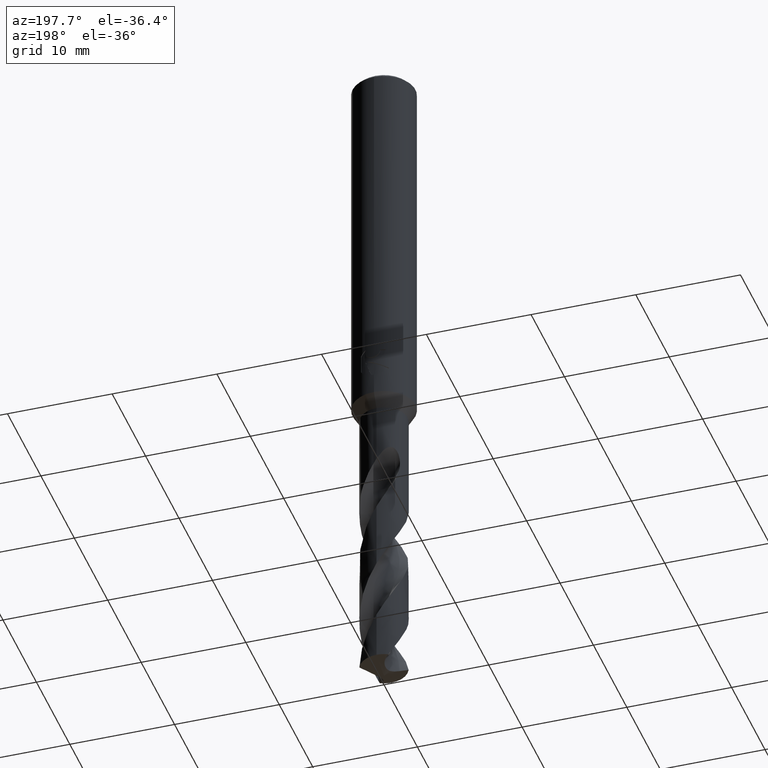
[diagram: clean part render]
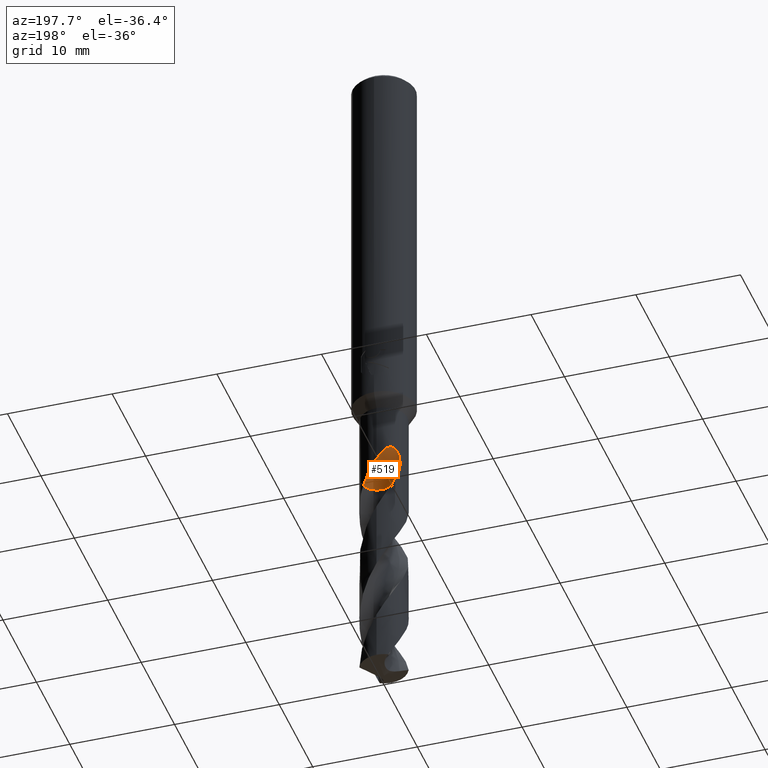
[diagram: same view with one face highlighted and labeled with its STEP entity id]
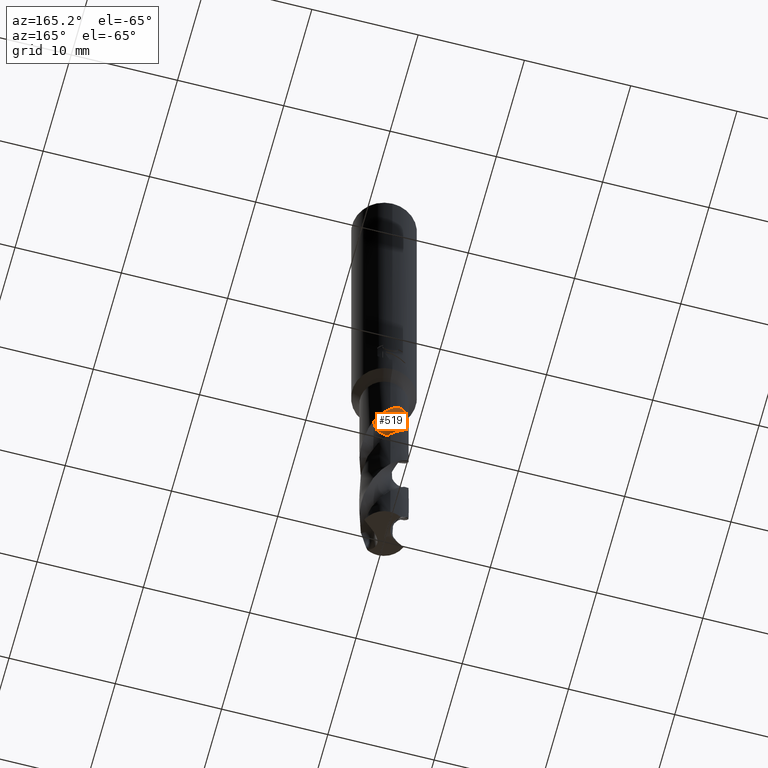
[diagram: same view with one face highlighted and labeled with its STEP entity id]
A machine part, auxiliary view. The second image highlights one B-rep face of the part: STEP entity #519.
A second angle (auxiliary view) of the same face is appended — the face is thin or edge-on in the first view.
In plain terms, the highlighted face is a SurfaceOfRevolution surface.
Its self-contained STEP definition (entity closure, byte-faithful):
#309=EDGE_CURVE('',#669,#689,#834,.T.);
#325=EDGE_CURVE('',#669,#433,#853,.T.);
#407=EDGE_CURVE('',#689,#495,#940,.T.);
#433=VERTEX_POINT('',#969);
#495=VERTEX_POINT('',#1039);
#519=ADVANCED_FACE('',(#1064),#1065,.F.);
#591=EDGE_CURVE('',#433,#751,#1144,.T.);
#669=VERTEX_POINT('',#1232);
#689=VERTEX_POINT('',#1253);
#721=EDGE_CURVE('',#751,#495,#1287,.T.);
#751=VERTEX_POINT('',#1319);
#834=B_SPLINE_CURVE_WITH_KNOTS('',3,(#1509,#1510,#1511,#1512,#1513,#1514,#1515,#1516,#1517,#1518,#1519,#1520,#1521,#1522,#1523,#1524,#1525,#1526,#1527,#1528,#1529,#1530,#1531,#1532,#1533,#1534,#1535,#1536),.UNSPECIFIED.,.F.,.F.,(4,2,2,2,2,2,2,2,2,2,2,2,2,4),(0.0,1.10237676829181,1.70429934614401,2.24948987269169,2.8828703444505,3.64370487400014,4.30313326674343,4.60196331204855,4.8203716542526,5.0270498267203,5.28923341162813,5.67281863326754,6.21813012500002,6.83823133073381),.UNSPECIFIED.);
#853=CIRCLE('',#1736,1.5);
#940=B_SPLINE_CURVE_WITH_KNOTS('',3,(#2135,#2136,#2137,#2138,#2139,#2140,#2141,#2142,#2143,#2144,#2145,#2146,#2147,#2148,#2149,#2150,#2151,#2152,#2153,#2154,#2155,#2156,#2157,#2158,#2159,#2160,#2161,#2162),.UNSPECIFIED.,.F.,.F.,(4,2,2,2,2,2,2,2,2,2,2,2,2,4),(0.0,1.10237676829181,1.70429934614401,2.24948987269169,2.8828703444505,3.64370487400014,4.30313326674343,4.60196331204855,4.8203716542526,5.0270498267203,5.28923341162813,5.67281863326754,6.21813012500002,6.83823133073381),.UNSPECIFIED.);
#969=CARTESIAN_POINT('',(-0.235669571777534,0.693618764051976,-45.407));
#1039=CARTESIAN_POINT('',(-1.8306948674076,1.30807350804436,-44.1749444868824));
#1064=FACE_OUTER_BOUND('',#3515,.T.);
#1065=SURFACE_OF_REVOLUTION('',#3516,#3517);
#1144=CIRCLE('',#4781,1.5);
#1232=CARTESIAN_POINT('',(1.43373680585452,1.73404116777488,-45.407));
#1253=CARTESIAN_POINT('',(-6.64717270755424E-013,2.25,-43.0152946603124));
#1287=CIRCLE('',#5935,9.77683477529929);
#1319=CARTESIAN_POINT('',(-1.06066017170911,1.11433982829089,-45.407));
#1509=CARTESIAN_POINT('',(1.43373680585452,1.73404116777488,-45.407));
#1510=CARTESIAN_POINT('',(1.28531840748315,1.85675620151544,-45.094047832029));
#1511=CARTESIAN_POINT('',(1.11467076594076,1.96584135909783,-44.8022756175691));
#1512=CARTESIAN_POINT('',(0.81711210209405,2.09954804117511,-44.3148500324075));
#1513=CARTESIAN_POINT('',(0.710036634719777,2.13801035581372,-44.1433574929602));
#1514=CARTESIAN_POINT('',(0.502752047922393,2.19549362913406,-43.8113922967703));
#1515=CARTESIAN_POINT('',(0.403468463026476,2.21580233585447,-43.65246700864));
#1516=CARTESIAN_POINT('',(0.188561307317842,2.2451128349668,-43.3099407237453));
#1517=CARTESIAN_POINT('',(0.0711426284877066,2.25199414449595,-43.1236586076092));
#1518=CARTESIAN_POINT('',(-0.189614129355091,2.24650927091748,-42.7251397399363));
#1519=CARTESIAN_POINT('',(-0.344216508040488,2.22954453559628,-42.4983781589815));
#1520=CARTESIAN_POINT('',(-0.642347221171536,2.16103276674423,-42.1244639290739));
#1521=CARTESIAN_POINT('',(-0.807291055321115,2.10883543012946,-41.9420083704354));
#1522=CARTESIAN_POINT('',(-1.05693186905048,1.98818290346383,-41.7711572005222));
#1523=CARTESIAN_POINT('',(-1.13956457960838,1.9426338280077,-41.7289330620008));
#1524=CARTESIAN_POINT('',(-1.28435609304837,1.84884715320582,-41.6964973436554));
#1525=CARTESIAN_POINT('',(-1.34374322626079,1.80613599454048,-41.6958916851621));
#1526=CARTESIAN_POINT('',(-1.45435497133747,1.71815991904833,-41.724279673852));
#1527=CARTESIAN_POINT('',(-1.50273103034455,1.67566922866192,-41.75089594029));
#1528=CARTESIAN_POINT('',(-1.60117577401835,1.58255419568909,-41.8341751821428));
#1529=CARTESIAN_POINT('',(-1.64672076822659,1.53429964522005,-41.8956619242978));
#1530=CARTESIAN_POINT('',(-1.74001164378541,1.42893229649089,-42.0640317240675));
#1531=CARTESIAN_POINT('',(-1.78460282261076,1.37155223423002,-42.1889123627397));
#1532=CARTESIAN_POINT('',(-1.86845488675278,1.25633378271581,-42.5383144933762));
#1533=CARTESIAN_POINT('',(-1.89876934940317,1.20725625416177,-42.7871540010812));
#1534=CARTESIAN_POINT('',(-1.91815217862639,1.17625283009311,-43.382082225774));
#1535=CARTESIAN_POINT('',(-1.90441817677815,1.20489514441039,-43.7556273268125));
#1536=CARTESIAN_POINT('',(-1.8306948674076,1.30807350804437,-44.1749444868824));
#1736=AXIS2_PLACEMENT_3D('',#6977,#6978,#6979);
#2135=CARTESIAN_POINT('',(1.43373680585452,1.73404116777488,-45.407));
#2136=CARTESIAN_POINT('',(1.28531840748315,1.85675620151544,-45.094047832029));
#2137=CARTESIAN_POINT('',(1.11467076594076,1.96584135909783,-44.8022756175691));
#2138=CARTESIAN_POINT('',(0.81711210209405,2.09954804117511,-44.3148500324075));
#2139=CARTESIAN_POINT('',(0.710036634719777,2.13801035581372,-44.1433574929602));
#2140=CARTESIAN_POINT('',(0.502752047922393,2.19549362913406,-43.8113922967703));
#2141=CARTESIAN_POINT('',(0.403468463026476,2.21580233585447,-43.65246700864));
#2142=CARTESIAN_POINT('',(0.188561307317842,2.2451128349668,-43.3099407237453));
#2143=CARTESIAN_POINT('',(0.0711426284877066,2.25199414449595,-43.1236586076092));
#2144=CARTESIAN_POINT('',(-0.189614129355091,2.24650927091748,-42.7251397399363));
#2145=CARTESIAN_POINT('',(-0.344216508040488,2.22954453559628,-42.4983781589815));
#2146=CARTESIAN_POINT('',(-0.642347221171536,2.16103276674423,-42.1244639290739));
#2147=CARTESIAN_POINT('',(-0.807291055321115,2.10883543012946,-41.9420083704354));
#2148=CARTESIAN_POINT('',(-1.05693186905048,1.98818290346383,-41.7711572005222));
#2149=CARTESIAN_POINT('',(-1.13956457960838,1.9426338280077,-41.7289330620008));
#2150=CARTESIAN_POINT('',(-1.28435609304837,1.84884715320582,-41.6964973436554));
#2151=CARTESIAN_POINT('',(-1.34374322626079,1.80613599454048,-41.6958916851621));
#2152=CARTESIAN_POINT('',(-1.45435497133747,1.71815991904833,-41.724279673852));
#2153=CARTESIAN_POINT('',(-1.50273103034455,1.67566922866192,-41.75089594029));
#2154=CARTESIAN_POINT('',(-1.60117577401835,1.58255419568909,-41.8341751821428));
#2155=CARTESIAN_POINT('',(-1.64672076822659,1.53429964522005,-41.8956619242978));
#2156=CARTESIAN_POINT('',(-1.74001164378541,1.42893229649089,-42.0640317240675));
#2157=CARTESIAN_POINT('',(-1.78460282261076,1.37155223423002,-42.1889123627397));
#2158=CARTESIAN_POINT('',(-1.86845488675278,1.25633378271581,-42.5383144933762));
#2159=CARTESIAN_POINT('',(-1.89876934940317,1.20725625416177,-42.7871540010812));
#2160=CARTESIAN_POINT('',(-1.91815217862639,1.17625283009311,-43.382082225774));
#2161=CARTESIAN_POINT('',(-1.90441817677815,1.20489514441039,-43.7556273268125));
#2162=CARTESIAN_POINT('',(-1.8306948674076,1.30807350804437,-44.1749444868824));
#3515=EDGE_LOOP('',(#7153,#7154,#7155,#7156,#7157));
#3516=(B_SPLINE_CURVE(3,(#7159,#7160,#7161,#7162,#7163,#7164,#7165,#7166,#7167),.UNSPECIFIED.,.F.,.F.)B_SPLINE_CURVE_WITH_KNOTS((4,1,3,1,4),(-2.85587336586318,-2.552478040669,-2.24908271547483,-1.94568739028065,-1.64229206508647),.UNSPECIFIED.)RATIONAL_B_SPLINE_CURVE((1.09204872334968,1.03068290778323,0.969317092216773,1.03068290778323,1.09204872334968,1.03068290778323,0.969317092216773,1.03068290778323,1.09204872334968))BOUNDED_CURVE()REPRESENTATION_ITEM('')GEOMETRIC_REPRESENTATION_ITEM()CURVE());
#3517=AXIS1_PLACEMENT('',#7174,#7175);
#4781=AXIS2_PLACEMENT_3D('',#7266,#7267,#7268);
#5935=AXIS2_PLACEMENT_3D('',#7422,#7423,#7424);
#6977=CARTESIAN_POINT('',(1.22474492199363E-005,2.17498775255078,-45.407));
#6978=DIRECTION('',(0.0,0.0,-1.0));
#6979=DIRECTION('',(0.707098616173261,0.707114946105553,0.0));
#7153=ORIENTED_EDGE('',*,*,#309,.F.);
#7154=ORIENTED_EDGE('',*,*,#325,.T.);
#7155=ORIENTED_EDGE('',*,*,#591,.T.);
#7156=ORIENTED_EDGE('',*,*,#721,.T.);
#7157=ORIENTED_EDGE('',*,*,#407,.F.);
#7159=CARTESIAN_POINT('',(-1.06066017170911,1.11433982829089,-45.407));
#7160=CARTESIAN_POINT('',(-0.852516218822914,0.906191068470301,-45.407));
#7161=CARTESIAN_POINT('',(-0.311028196137685,0.610647939416187,-45.407));
#7162=CARTESIAN_POINT('',(0.302330748561611,0.676570809499517,-45.407));
#7163=CARTESIAN_POINT('',(0.574268295682251,0.789264118102779,-45.407));
#7164=CARTESIAN_POINT('',(0.846205842802891,0.90195742670604,-45.407));
#7165=CARTESIAN_POINT('',(1.32640159654828,1.28921323095893,-45.407));
#7166=CARTESIAN_POINT('',(1.50011365200011,1.88114155570218,-45.407));
#7167=CARTESIAN_POINT('',(1.50001215828884,2.17550493833828,-45.407));
#7174=CARTESIAN_POINT('',(-0.762721921229023,10.875,-45.8837012007681));
#7175=DIRECTION('',(0.847998304005088,-0.0,0.52999894000318));
#7266=CARTESIAN_POINT('',(1.22474492199363E-005,2.17498775255078,-45.407));
#7267=DIRECTION('',(0.0,0.0,-1.0));
#7268=DIRECTION('',(0.707098616173261,0.707114946105553,0.0));
#7422=CARTESIAN_POINT('',(-0.762721921229023,10.875,-45.8837012007681));
#7423=DIRECTION('',(-0.847998304005088,-9.29188155447829E-018,-0.52999894000318));
#7424=DIRECTION('',(-0.0535598122533608,-0.994880693138896,0.0856956996053773));